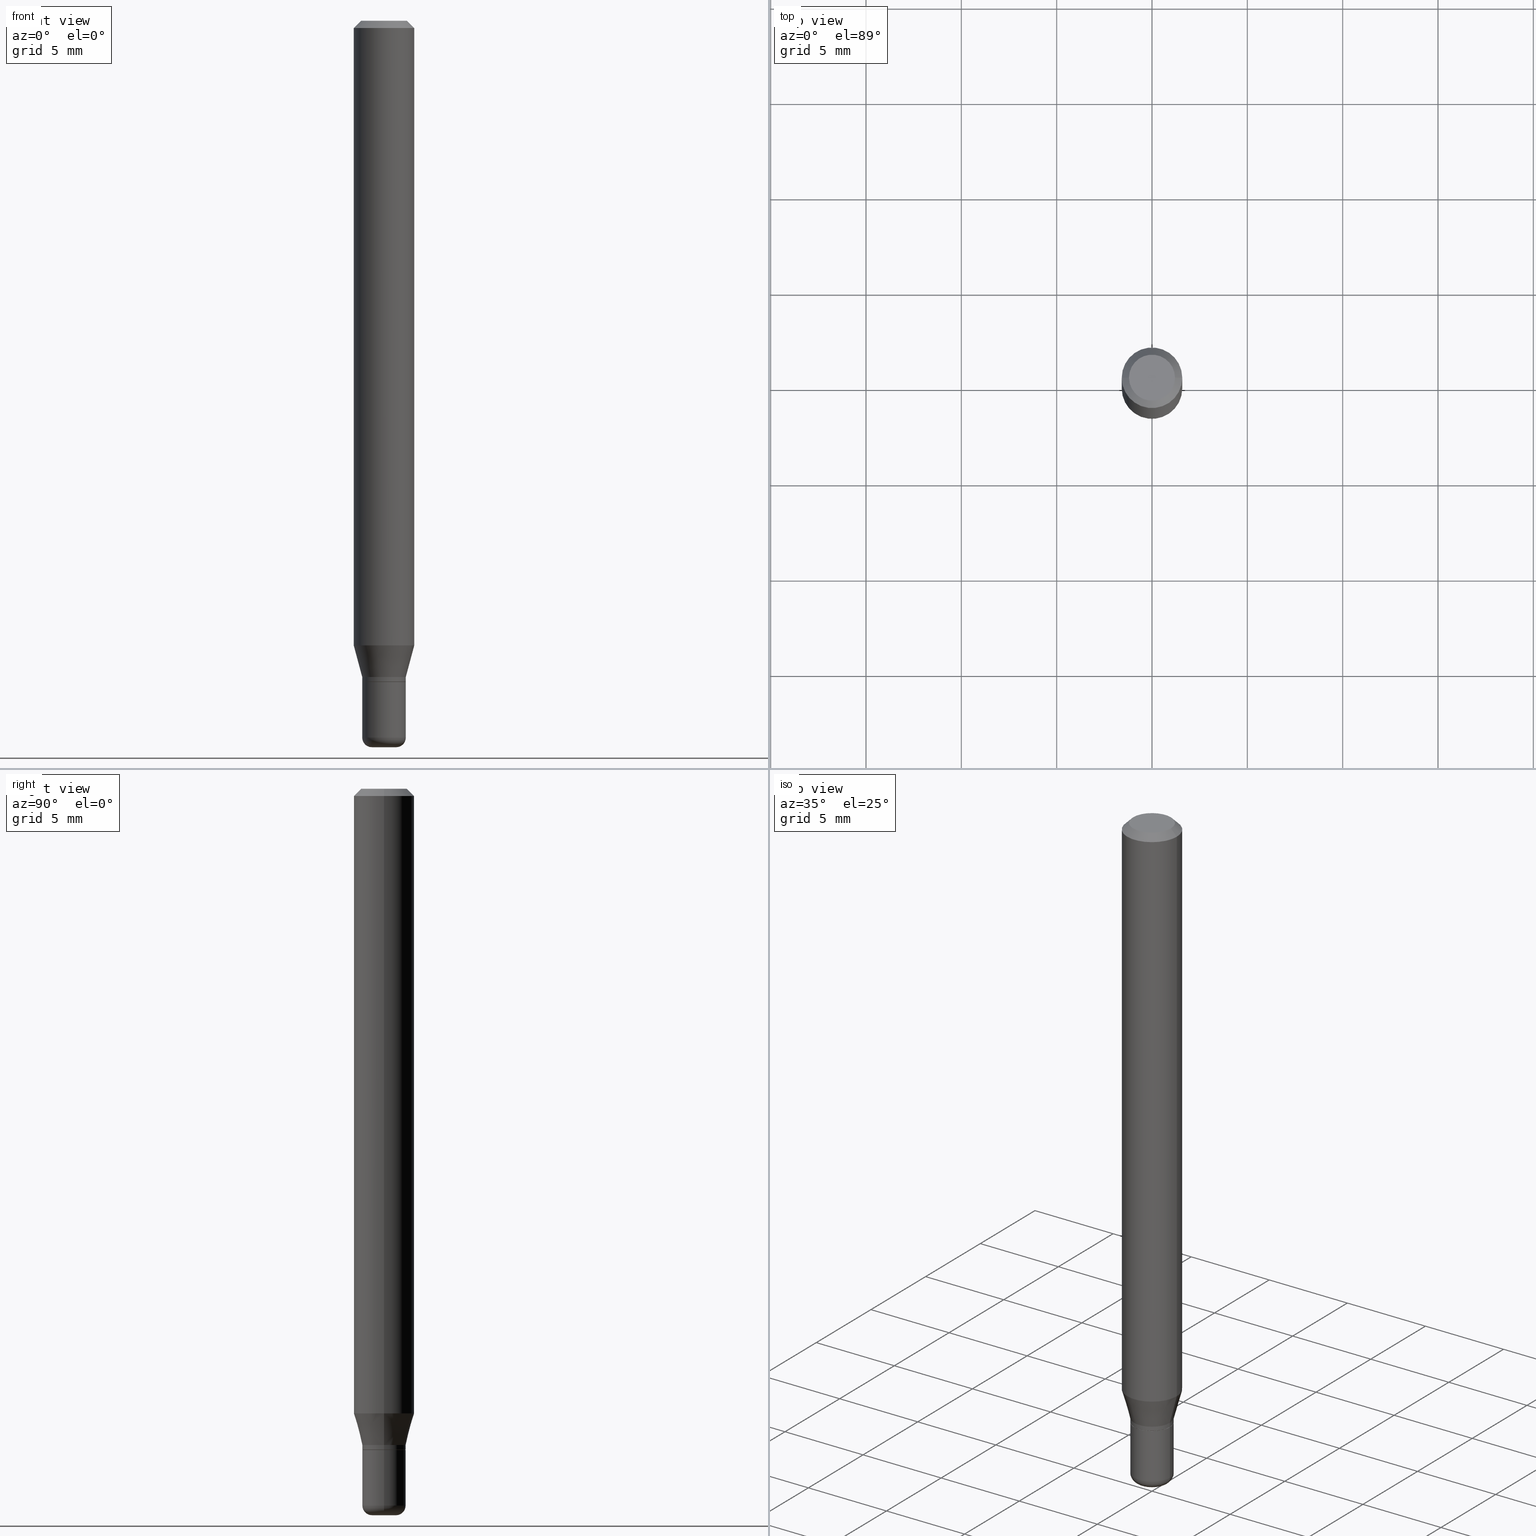
[diagram: canonical four-view strip — front | top / right | iso, engineering-drawing reading convention]
A machine part, canonical four-view strip (front | top / right | iso — engineering-drawing reading convention). The complete STEP part file that produces these views, byte-faithful:
ISO-10303-21;
HEADER;
FILE_DESCRIPTION (( 'STEP AP203' ),
    '1' );
FILE_NAME ('09206.STEP',
    '2024-02-29T23:23:54',
    ( '' ),
    ( '' ),
    'SwSTEP 2.0',
    'SolidWorks 2023',
    '' );
FILE_SCHEMA (( 'CONFIG_CONTROL_DESIGN' ));
ENDSEC;

DATA;
#1 = DIRECTION ( 'NONE',  ( 1.000000000000000000, -6.982962677686263555E-15, 0.000000000000000000 ) ) ;
#2 = ORIENTED_EDGE ( 'NONE', *, *, #406, .T. ) ;
#3 = ORIENTED_EDGE ( 'NONE', *, *, #422, .T. ) ;
#4 = ADVANCED_FACE ( 'NONE', ( #18 ), #98, .T. ) ;
#5 = DIRECTION ( 'NONE',  ( -1.000000000000000000, 6.982962677686266711E-15, 0.000000000000000000 ) ) ;
#6 = TOROIDAL_SURFACE ( 'NONE', #299, 0.02499999999999999792, 0.02000000000000003164 ) ;
#7 = FACE_OUTER_BOUND ( 'NONE', #474, .T. ) ;
#8 = CC_DESIGN_PERSON_AND_ORGANIZATION_ASSIGNMENT ( #154, #161, ( #114 ) ) ;
#9 = DIRECTION ( 'NONE',  ( -2.445468806185136877E-29, 3.491481338843145188E-15, 1.000000000000000000 ) ) ;
#10 = CARTESIAN_POINT ( 'NONE',  ( 0.02500000000000000139, -5.411796075206874844E-15, -1.500000000000000222 ) ) ;
#11 = CIRCLE ( 'NONE', #264, 0.06250000000000000000 ) ;
#12 = CONICAL_SURFACE ( 'NONE', #185, 0.04450000000000001177, 0.7853981633972775267 ) ;
#13 = ORIENTED_EDGE ( 'NONE', *, *, #164, .T. ) ;
#14 =( NAMED_UNIT ( * ) PLANE_ANGLE_UNIT ( ) SI_UNIT ( $, .RADIAN. ) );
#15 = CARTESIAN_POINT ( 'NONE',  ( -0.02499999999999999792, -4.989756697547830463E-15, -1.479999999999999982 ) ) ;
#16 = ORIENTED_EDGE ( 'NONE', *, *, #190, .F. ) ;
#17 = APPLICATION_PROTOCOL_DEFINITION ( 'international standard', 'config_control_design', 1994, #435 ) ;
#18 = FACE_OUTER_BOUND ( 'NONE', #105, .T. ) ;
#19 = LENGTH_MEASURE_WITH_UNIT ( LENGTH_MEASURE( 0.02539999999999999897 ), #345 );
#20 = EDGE_CURVE ( 'NONE', #313, #191, #461, .T. ) ;
#21 = LINE ( 'NONE', #153, #329 ) ;
#22 = ORIENTED_EDGE ( 'NONE', *, *, #339, .F. ) ;
#23 = AXIS2_PLACEMENT_3D ( 'NONE', #468, #470, #178 ) ;
#24 =( GEOMETRIC_REPRESENTATION_CONTEXT ( 3 ) GLOBAL_UNCERTAINTY_ASSIGNED_CONTEXT ( ( #290 ) ) GLOBAL_UNIT_ASSIGNED_CONTEXT ( ( #260, #14, #252 ) ) REPRESENTATION_CONTEXT ( 'NONE', 'WORKASPACE' ) );
#25 = DATE_AND_TIME ( #67, #54 ) ;
#26 = ORIENTED_EDGE ( 'NONE', *, *, #30, .T. ) ;
#27 = EDGE_CURVE ( 'NONE', #385, #191, #124, .T. ) ;
#28 = DIRECTION ( 'NONE',  ( 1.000000000000000000, -6.982962677686276177E-15, 0.000000000000000000 ) ) ;
#29 = ORIENTED_EDGE ( 'NONE', *, *, #82, .T. ) ;
#30 = EDGE_CURVE ( 'NONE', #83, #93, #43, .T. ) ;
#31 = SHAPE_DEFINITION_REPRESENTATION ( #499, #41 ) ;
#32 = FACE_OUTER_BOUND ( 'NONE', #46, .T. ) ;
#33 = AXIS2_PLACEMENT_3D ( 'NONE', #239, #84, #272 ) ;
#34 = SECURITY_CLASSIFICATION_LEVEL ( 'unclassified' ) ;
#35 = DIRECTION ( 'NONE',  ( -2.445468806185136597E-29, 3.491481338843145583E-15, 1.000000000000000000 ) ) ;
#36 = DATE_TIME_ROLE ( 'classification_date' ) ;
#37 = CARTESIAN_POINT ( 'NONE',  ( 3.338064920442711836E-29, -4.765872027520893280E-15, -1.364999999999999991 ) ) ;
#38 = ORIENTED_EDGE ( 'NONE', *, *, #27, .T. ) ;
#39 = DIRECTION ( 'NONE',  ( -2.445468806185136597E-29, 3.491481338843145583E-15, 1.000000000000000000 ) ) ;
#40 = EDGE_CURVE ( 'NONE', #58, #313, #69, .T. ) ;
#41 = ADVANCED_BREP_SHAPE_REPRESENTATION ( '09206', ( #128, #471, #431 ), #24 ) ;
#42 = CLOSED_SHELL ( 'NONE', ( #437, #428, #355, #265, #132, #455, #445, #442, #75, #409, #4, #322 ) ) ;
#43 = CIRCLE ( 'NONE', #195, 0.04500000000000003303 ) ;
#44 = FACE_OUTER_BOUND ( 'NONE', #506, .T. ) ;
#45 = VERTEX_POINT ( 'NONE', #304 ) ;
#46 = EDGE_LOOP ( 'NONE', ( #138, #241, #274, #513 ) ) ;
#47 = PLANE ( 'NONE',  #308 ) ;
#48 = ORIENTED_EDGE ( 'NONE', *, *, #205, .T. ) ;
#49 = CYLINDRICAL_SURFACE ( 'NONE', #143, 0.04500000000000002609 ) ;
#50 = ORIENTED_EDGE ( 'NONE', *, *, #512, .T. ) ;
#51 = CARTESIAN_POINT ( 'NONE',  ( 0.000000000000000000, 0.000000000000000000, 0.000000000000000000 ) ) ;
#52 = AXIS2_PLACEMENT_3D ( 'NONE', #220, #257, #73 ) ;
#53 = AXIS2_PLACEMENT_3D ( 'NONE', #289, #281, #56 ) ;
#54 = LOCAL_TIME ( 18, 23, 54.00000000000000000, #298 ) ;
#55 = DIRECTION ( 'NONE',  ( 0.2588190451025206840, 1.565188264969626504E-15, 0.9659258262890682012 ) ) ;
#56 = DIRECTION ( 'NONE',  ( 1.000000000000000000, -6.982962677686266711E-15, 0.000000000000000000 ) ) ;
#57 = ORIENTED_EDGE ( 'NONE', *, *, #230, .F. ) ;
#58 = VERTEX_POINT ( 'NONE', #99 ) ;
#59 = CARTESIAN_POINT ( 'NONE',  ( 3.313610232380860851E-29, -4.730957214132463209E-15, -1.355000000000000204 ) ) ;
#60 = DIRECTION ( 'NONE',  ( 1.000000000000000000, -6.982962677686266711E-15, 4.852736867747365086E-29 ) ) ;
#61 = VECTOR ( 'NONE', #204, 39.37007874015748143 ) ;
#62 = AXIS2_PLACEMENT_3D ( 'NONE', #110, #495, #375 ) ;
#63 = ORIENTED_EDGE ( 'NONE', *, *, #106, .T. ) ;
#64 = DIRECTION ( 'NONE',  ( 7.105427357601001859E-15, 1.000000000000000000, -3.491481338843145583E-15 ) ) ;
#65 = PRODUCT_DEFINITION ( 'UNKNOWN', '', #114, #465 ) ;
#66 = FACE_OUTER_BOUND ( 'NONE', #70, .T. ) ;
#67 = CALENDAR_DATE ( 2024, 29, 2 ) ;
#68 = DIRECTION ( 'NONE',  ( 2.438088387897960049E-29, -3.491481338843145188E-15, -1.000000000000000000 ) ) ;
#69 = CIRCLE ( 'NONE', #135, 0.04750000000000000749 ) ;
#70 = EDGE_LOOP ( 'NONE', ( #189, #13 ) ) ;
#71 = CC_DESIGN_SECURITY_CLASSIFICATION ( #492, ( #114 ) ) ;
#72 = APPROVAL_ROLE ( '' ) ;
#73 = DIRECTION ( 'NONE',  ( 1.000000000000000000, -6.982962677686276177E-15, 0.000000000000000000 ) ) ;
#74 = CARTESIAN_POINT ( 'NONE',  ( -0.04500000000000003303, -4.411212983040417053E-15, -1.355000000000000204 ) ) ;
#75 = ADVANCED_FACE ( 'NONE', ( #232 ), #224, .F. ) ;
#76 = CARTESIAN_POINT ( 'NONE',  ( 0.06250000000000000000, -4.364351673553916694E-16, 3.047610484872459871E-30 ) ) ;
#77 = CIRCLE ( 'NONE', #33, 0.06250000000000000000 ) ;
#78 = CONICAL_SURFACE ( 'NONE', #389, 0.06250000000000000000, 0.7853981633974488341 ) ;
#79 = CARTESIAN_POINT ( 'NONE',  ( 0.000000000000000000, 0.000000000000000000, 0.000000000000000000 ) ) ;
#80 = ORIENTED_EDGE ( 'NONE', *, *, #348, .T. ) ;
#81 = CARTESIAN_POINT ( 'NONE',  ( 0.000000000000000000, 0.000000000000000000, 0.000000000000000000 ) ) ;
#82 = EDGE_CURVE ( 'NONE', #305, #321, #236, .T. ) ;
#83 = VERTEX_POINT ( 'NONE', #261 ) ;
#84 = DIRECTION ( 'NONE',  ( -2.445468806185136597E-29, 3.491481338843145583E-15, 1.000000000000000000 ) ) ;
#85 = ORIENTED_EDGE ( 'NONE', *, *, #20, .F. ) ;
#86 = ORIENTED_EDGE ( 'NONE', *, *, #330, .F. ) ;
#87 = VECTOR ( 'NONE', #9, 39.37007874015748143 ) ;
#88 = CARTESIAN_POINT ( 'NONE',  ( 3.668203209277632395E-31, -5.237222008264614861E-17, -0.01499999999999970281 ) ) ;
#89 = FACE_OUTER_BOUND ( 'NONE', #446, .T. ) ;
#90 = DIRECTION ( 'NONE',  ( -1.000000000000000000, 6.982962677686266711E-15, 0.000000000000000000 ) ) ;
#91 = CARTESIAN_POINT ( 'NONE',  ( 3.668203209277704895E-29, -5.237222008264718177E-15, -1.500000000000000222 ) ) ;
#92 = VECTOR ( 'NONE', #316, 39.37007874015748143 ) ;
#93 = VERTEX_POINT ( 'NONE', #193 ) ;
#94 = EDGE_CURVE ( 'NONE', #321, #462, #249, .T. ) ;
#95 = DIRECTION ( 'NONE',  ( -2.445468806185136597E-29, 3.491481338843145583E-15, 1.000000000000000000 ) ) ;
#96 = EDGE_CURVE ( 'NONE', #321, #417, #188, .T. ) ;
#97 = DIRECTION ( 'NONE',  ( 1.000000000000000000, 0.000000000000000000, 0.000000000000000000 ) ) ;
#98 = CONICAL_SURFACE ( 'NONE', #52, 0.04450000000000001177, 0.7853981633972775267 ) ;
#99 = CARTESIAN_POINT ( 'NONE',  ( 0.04750000000000000749, -4.035134999187568762E-16, 2.731847993664288856E-16 ) ) ;
#100 = VECTOR ( 'NONE', #148, 39.37007874015748143 ) ;
#101 = AXIS2_PLACEMENT_3D ( 'NONE', #463, #107, #144 ) ;
#102 = ADVANCED_FACE ( 'NONE', ( #66 ), #295, .F. ) ;
#103 = ORIENTED_EDGE ( 'NONE', *, *, #190, .T. ) ;
#104 = DIRECTION ( 'NONE',  ( 1.000000000000000000, -6.982962677686263555E-15, 0.000000000000000000 ) ) ;
#105 = EDGE_LOOP ( 'NONE', ( #16, #440, #286, #240 ) ) ;
#106 = EDGE_CURVE ( 'NONE', #305, #401, #371, .T. ) ;
#107 = DIRECTION ( 'NONE',  ( -2.445468806185136597E-29, 3.491481338843145583E-15, 1.000000000000000000 ) ) ;
#108 = VERTEX_POINT ( 'NONE', #504 ) ;
#109 = EDGE_LOOP ( 'NONE', ( #317, #516, #374, #210 ) ) ;
#110 = CARTESIAN_POINT ( 'NONE',  ( 3.313610232380860851E-29, -4.730957214132463209E-15, -1.355000000000000204 ) ) ;
#111 = ORIENTED_EDGE ( 'NONE', *, *, #361, .F. ) ;
#112 = VECTOR ( 'NONE', #123, 39.37007874015748854 ) ;
#113 = ORIENTED_EDGE ( 'NONE', *, *, #348, .F. ) ;
#114 = PRODUCT_DEFINITION_FORMATION_WITH_SPECIFIED_SOURCE ( 'ANY', '', #425, .NOT_KNOWN. ) ;
#115 = PERSON_AND_ORGANIZATION ( #476, #245 ) ;
#116 = EDGE_CURVE ( 'NONE', #108, #93, #346, .T. ) ;
#117 = VERTEX_POINT ( 'NONE', #457 ) ;
#118 = DIRECTION ( 'NONE',  ( -2.445468806185136597E-29, 3.491481338843145583E-15, 1.000000000000000000 ) ) ;
#119 = EDGE_CURVE ( 'NONE', #181, #83, #21, .T. ) ;
#120 = PERSON_AND_ORGANIZATION_ROLE ( 'creator' ) ;
#121 = CARTESIAN_POINT ( 'NONE',  ( 0.06250000000000000000, -4.811533449433669144E-16, -0.01499999999999970281 ) ) ;
#122 = PERSON_AND_ORGANIZATION_ROLE ( 'classification_officer' ) ;
#123 = DIRECTION ( 'NONE',  ( -0.2588190451025206840, 5.211531920934545520E-15, 0.9659258262890682012 ) ) ;
#124 = CIRCLE ( 'NONE', #403, 0.06250000000000000000 ) ;
#125 = CONICAL_SURFACE ( 'NONE', #201, 0.04500000000000003303, 0.2617993877991494078 ) ;
#126 = COORDINATED_UNIVERSAL_TIME_OFFSET ( 5, 0, .BEHIND. ) ;
#127 = CARTESIAN_POINT ( 'NONE',  ( -0.02500000000000000139, -4.953617237360251242E-15, -1.500000000000000222 ) ) ;
#128 = MANIFOLD_SOLID_BREP ( 'Body-Move/Copy2[1]', #211 ) ;
#129 = PERSON_AND_ORGANIZATION ( #476, #245 ) ;
#130 = LINE ( 'NONE', #76, #92 ) ;
#131 = ORIENTED_EDGE ( 'NONE', *, *, #94, .T. ) ;
#132 = ADVANCED_FACE ( 'NONE', ( #183 ), #125, .T. ) ;
#133 = DIRECTION ( 'NONE',  ( -2.445468806185136597E-29, 3.491481338843145583E-15, 1.000000000000000000 ) ) ;
#134 = EDGE_LOOP ( 'NONE', ( #26, #48, #199, #487 ) ) ;
#135 = AXIS2_PLACEMENT_3D ( 'NONE', #342, #373, #60 ) ;
#136 = LOCAL_TIME ( 18, 23, 54.00000000000000000, #233 ) ;
#137 = DIRECTION ( 'NONE',  ( -2.445468806185136597E-29, 3.491481338843145583E-15, 1.000000000000000000 ) ) ;
#138 = ORIENTED_EDGE ( 'NONE', *, *, #483, .T. ) ;
#139 = DIRECTION ( 'NONE',  ( 1.000000000000000000, -6.982962677686266711E-15, 4.876176775795935793E-29 ) ) ;
#140 = DIRECTION ( 'NONE',  ( -2.445468806185136597E-29, 3.491481338843145583E-15, 1.000000000000000000 ) ) ;
#141 = CARTESIAN_POINT ( 'NONE',  ( 3.153894490303225812E-29, -4.502925463503242152E-15, -1.289689110867545008 ) ) ;
#142 = AXIS2_PLACEMENT_3D ( 'NONE', #408, #140, #1 ) ;
#143 = AXIS2_PLACEMENT_3D ( 'NONE', #454, #209, #139 ) ;
#144 = DIRECTION ( 'NONE',  ( 1.000000000000000000, -6.982962677686262766E-15, 0.000000000000000000 ) ) ;
#145 = APPROVAL ( #315, 'UNSPECIFIED' ) ;
#146 = DIRECTION ( 'NONE',  ( 1.000000000000000000, -6.982962677686263555E-15, 0.000000000000000000 ) ) ;
#147 = APPROVAL_DATE_TIME ( #418, #390 ) ;
#148 = DIRECTION ( 'NONE',  ( -2.445468806185136877E-29, 3.491481338843145188E-15, 1.000000000000000000 ) ) ;
#149 = CIRCLE ( 'NONE', #429, 0.02500000000000000139 ) ;
#150 = APPROVAL_STATUS ( 'not_yet_approved' ) ;
#151 = CARTESIAN_POINT ( 'NONE',  ( 3.313610232380860851E-29, -4.730957214132463209E-15, -1.355000000000000204 ) ) ;
#152 = DATE_TIME_ROLE ( 'creation_date' ) ;
#153 = CARTESIAN_POINT ( 'NONE',  ( 0.04500000000000002609, -3.142333204958821795E-16, 2.194279549108172368E-30 ) ) ;
#154 = PERSON_AND_ORGANIZATION ( #476, #245 ) ;
#155 = DIRECTION ( 'NONE',  ( 1.000000000000000000, -6.982962677686266711E-15, 0.000000000000000000 ) ) ;
#156 = AXIS2_PLACEMENT_3D ( 'NONE', #79, #320, #386 ) ;
#157 = ORIENTED_EDGE ( 'NONE', *, *, #330, .T. ) ;
#158 = CARTESIAN_POINT ( 'NONE',  ( 0.000000000000000000, 0.000000000000000000, 0.000000000000000000 ) ) ;
#159 = CARTESIAN_POINT ( 'NONE',  ( 3.619293833154002365E-29, -5.167392381487854879E-15, -1.479999999999999982 ) ) ;
#160 = CC_DESIGN_PERSON_AND_ORGANIZATION_ASSIGNMENT ( #416, #497, ( #425 ) ) ;
#161 = PERSON_AND_ORGANIZATION_ROLE ( 'design_supplier' ) ;
#162 = CYLINDRICAL_SURFACE ( 'NONE', #175, 0.04500000000000001221 ) ;
#163 = DIRECTION ( 'NONE',  ( 1.000000000000000000, -6.982962677686269077E-15, 0.000000000000000000 ) ) ;
#164 = EDGE_CURVE ( 'NONE', #417, #393, #227, .T. ) ;
#165 = DIRECTION ( 'NONE',  ( 1.000000000000000000, -6.982962677686267499E-15, 4.876176775795935793E-29 ) ) ;
#166 = EDGE_LOOP ( 'NONE', ( #338, #63, #157, #518 ) ) ;
#167 = CARTESIAN_POINT ( 'NONE',  ( 0.06250000000000000000, -4.888073874380378612E-16, -0.01499999999999970281 ) ) ;
#168 = AXIS2_PLACEMENT_3D ( 'NONE', #158, #319, #194 ) ;
#169 = DIRECTION ( 'NONE',  ( -2.438088387897960049E-29, 3.491481338843145188E-15, 1.000000000000000000 ) ) ;
#170 = FACE_OUTER_BOUND ( 'NONE', #311, .T. ) ;
#171 = ADVANCED_FACE ( 'NONE', ( #350 ), #337, .T. ) ;
#172 = CARTESIAN_POINT ( 'NONE',  ( -0.06250000000000000000, 4.440892098500626162E-16, -3.074334431409316114E-30 ) ) ;
#173 = CC_DESIGN_DATE_AND_TIME_ASSIGNMENT ( #469, #36, ( #492 ) ) ;
#174 = CARTESIAN_POINT ( 'NONE',  ( -0.04499999999999999833, -4.646887973412328712E-15, -1.364999999999999991 ) ) ;
#175 = AXIS2_PLACEMENT_3D ( 'NONE', #81, #133, #165 ) ;
#176 = EDGE_CURVE ( 'NONE', #341, #385, #130, .T. ) ;
#177 = DIRECTION ( 'NONE',  ( 1.000000000000000000, -6.982962677686266711E-15, 4.876176775795935793E-29 ) ) ;
#178 = DIRECTION ( 'NONE',  ( -1.000000000000000000, 6.982962677686265922E-15, -4.876176775795935793E-29 ) ) ;
#179 = DIRECTION ( 'NONE',  ( -2.445468806185136597E-29, 3.491481338843145583E-15, 1.000000000000000000 ) ) ;
#180 = DIRECTION ( 'NONE',  ( -2.445468806185136597E-29, 3.491481338843145583E-15, 1.000000000000000000 ) ) ;
#181 = VERTEX_POINT ( 'NONE', #517 ) ;
#182 = ORIENTED_EDGE ( 'NONE', *, *, #335, .T. ) ;
#183 = FACE_OUTER_BOUND ( 'NONE', #134, .T. ) ;
#184 = CIRCLE ( 'NONE', #491, 0.04499999999999999833 ) ;
#185 = AXIS2_PLACEMENT_3D ( 'NONE', #326, #488, #490 ) ;
#186 = CARTESIAN_POINT ( 'NONE',  ( 0.000000000000000000, 0.000000000000000000, 0.000000000000000000 ) ) ;
#187 = ORIENTED_EDGE ( 'NONE', *, *, #369, .F. ) ;
#188 = LINE ( 'NONE', #507, #486 ) ;
#189 = ORIENTED_EDGE ( 'NONE', *, *, #384, .T. ) ;
#190 = EDGE_CURVE ( 'NONE', #292, #108, #514, .T. ) ;
#191 = VERTEX_POINT ( 'NONE', #360 ) ;
#192 = CARTESIAN_POINT ( 'NONE',  ( 3.338064920442711836E-29, -4.765872027520893280E-15, -1.364999999999999991 ) ) ;
#193 = CARTESIAN_POINT ( 'NONE',  ( -0.04500000000000003303, -4.235024618346798294E-15, -1.355000000000000204 ) ) ;
#194 = DIRECTION ( 'NONE',  ( 1.000000000000000000, -6.982962677686266711E-15, 4.876176775795935793E-29 ) ) ;
#195 = AXIS2_PLACEMENT_3D ( 'NONE', #151, #118, #146 ) ;
#196 = ADVANCED_FACE ( 'NONE', ( #198 ), #6, .T. ) ;
#197 = CARTESIAN_POINT ( 'NONE',  ( 3.582686580359766038E-29, -5.359686688179453325E-15, -1.500000000000000222 ) ) ;
#198 = FACE_OUTER_BOUND ( 'NONE', #231, .T. ) ;
#199 = ORIENTED_EDGE ( 'NONE', *, *, #483, .F. ) ;
#200 = ORIENTED_EDGE ( 'NONE', *, *, #164, .F. ) ;
#201 = AXIS2_PLACEMENT_3D ( 'NONE', #502, #39, #234 ) ;
#202 = LOCAL_TIME ( 18, 23, 54.00000000000000000, #472 ) ;
#203 = EDGE_LOOP ( 'NONE', ( #268, #131, #182, #200 ) ) ;
#204 = DIRECTION ( 'NONE',  ( -0.7071067811864267805, 7.493145998869918709E-15, 0.7071067811866682540 ) ) ;
#205 = EDGE_CURVE ( 'NONE', #93, #45, #424, .T. ) ;
#206 = ORIENTED_EDGE ( 'NONE', *, *, #467, .F. ) ;
#207 = CARTESIAN_POINT ( 'NONE',  ( -6.680649051745406845E-45, 9.538196290434862081E-31, 2.731847993664263218E-16 ) ) ;
#208 = APPLICATION_CONTEXT ( 'configuration controlled 3d designs of mechanical parts and assemblies' ) ;
#209 = DIRECTION ( 'NONE',  ( -2.445468806185136597E-29, 3.491481338843145583E-15, 1.000000000000000000 ) ) ;
#210 = ORIENTED_EDGE ( 'NONE', *, *, #406, .F. ) ;
#211 = CLOSED_SHELL ( 'NONE', ( #196, #344, #102, #216, #171, #294 ) ) ;
#212 = CC_DESIGN_APPROVAL ( #390, ( #65 ) ) ;
#213 = CARTESIAN_POINT ( 'NONE',  ( 0.04500000000000003303, -5.045190534628344896E-15, -1.355000000000000204 ) ) ;
#214 = DIRECTION ( 'NONE',  ( -2.445468806185136597E-29, 3.491481338843145583E-15, 1.000000000000000000 ) ) ;
#215 = DIRECTION ( 'NONE',  ( 0.7071067811864267805, -2.468850131080992517E-15, 0.7071067811866682540 ) ) ;
#216 = ADVANCED_FACE ( 'NONE', ( #475 ), #162, .T. ) ;
#217 = DIRECTION ( 'NONE',  ( -2.445468806185136597E-29, 3.491481338843145583E-15, 1.000000000000000000 ) ) ;
#218 = VECTOR ( 'NONE', #285, 39.37007874015748143 ) ;
#219 = CIRCLE ( 'NONE', #397, 0.04500000000000001221 ) ;
#220 = CARTESIAN_POINT ( 'NONE',  ( 3.338064920442711836E-29, -4.765872027520893280E-15, -1.364999999999999991 ) ) ;
#221 = COORDINATED_UNIVERSAL_TIME_OFFSET ( 5, 0, .BEHIND. ) ;
#222 = ORIENTED_EDGE ( 'NONE', *, *, #422, .F. ) ;
#223 = CALENDAR_DATE ( 2024, 29, 2 ) ;
#224 = PLANE ( 'NONE',  #23 ) ;
#225 = APPROVAL_ROLE ( '' ) ;
#226 = CC_DESIGN_PERSON_AND_ORGANIZATION_ASSIGNMENT ( #129, #120, ( #114 ) ) ;
#227 = CIRCLE ( 'NONE', #410, 0.04499999999999999833 ) ;
#228 = DIRECTION ( 'NONE',  ( -2.445468806185136597E-29, 3.491481338843145583E-15, 1.000000000000000000 ) ) ;
#229 = AXIS2_PLACEMENT_3D ( 'NONE', #197, #280, #354 ) ;
#230 = EDGE_CURVE ( 'NONE', #292, #117, #387, .T. ) ;
#231 = EDGE_LOOP ( 'NONE', ( #297, #29, #113, #86 ) ) ;
#232 = FACE_OUTER_BOUND ( 'NONE', #426, .T. ) ;
#233 = COORDINATED_UNIVERSAL_TIME_OFFSET ( 5, 0, .BEHIND. ) ;
#234 = DIRECTION ( 'NONE',  ( 1.000000000000000000, -6.982962677686263555E-15, 0.000000000000000000 ) ) ;
#235 = CYLINDRICAL_SURFACE ( 'NONE', #156, 0.04500000000000002609 ) ;
#236 = CIRCLE ( 'NONE', #452, 0.02000000000000003511 ) ;
#237 = CALENDAR_DATE ( 2024, 29, 2 ) ;
#238 = CARTESIAN_POINT ( 'NONE',  ( 0.02499999999999999792, -5.341966448430011546E-15, -1.479999999999999982 ) ) ;
#239 = CARTESIAN_POINT ( 'NONE',  ( 3.668203209277632395E-31, -5.237222008264614861E-17, -0.01499999999999970281 ) ) ;
#240 = ORIENTED_EDGE ( 'NONE', *, *, #512, .F. ) ;
#241 = ORIENTED_EDGE ( 'NONE', *, *, #415, .T. ) ;
#242 = CARTESIAN_POINT ( 'NONE',  ( 0.04500000000000001221, -3.142333204958821302E-16, 2.194279549108171667E-30 ) ) ;
#243 = EDGE_CURVE ( 'NONE', #58, #385, #480, .T. ) ;
#244 = CIRCLE ( 'NONE', #53, 0.04500000000000001221 ) ;
#245 = ORGANIZATION ( 'UNSPECIFIED', 'UNSPECIFIED', '' ) ;
#246 = DIRECTION ( 'NONE',  ( 1.000000000000000000, -6.982962677686262766E-15, 0.000000000000000000 ) ) ;
#247 = CARTESIAN_POINT ( 'NONE',  ( 0.04499999999999999833, -5.080105348016775756E-15, -1.364999999999999991 ) ) ;
#248 = CYLINDRICAL_SURFACE ( 'NONE', #481, 0.06250000000000000000 ) ;
#249 = CIRCLE ( 'NONE', #459, 0.04500000000000003303 ) ;
#250 = DIRECTION ( 'NONE',  ( 1.000000000000000000, -6.982962677686267499E-15, 4.876176775795935793E-29 ) ) ;
#251 = CARTESIAN_POINT ( 'NONE',  ( 0.06250000000000000000, -4.939360630858633822E-15, -1.289689110867545008 ) ) ;
#252 =( NAMED_UNIT ( * ) SI_UNIT ( $, .STERADIAN. ) SOLID_ANGLE_UNIT ( ) );
#253 = DIRECTION ( 'NONE',  ( -2.445468806185136597E-29, 3.491481338843145583E-15, 1.000000000000000000 ) ) ;
#254 = EDGE_LOOP ( 'NONE', ( #282, #222, #395, #423 ) ) ;
#255 = PRODUCT_RELATED_PRODUCT_CATEGORY ( 'detail', '', ( #425 ) ) ;
#256 = DIRECTION ( 'NONE',  ( 0.000000000000000000, 0.000000000000000000, 1.000000000000000000 ) ) ;
#257 = DIRECTION ( 'NONE',  ( -2.445468806185136597E-29, 3.491481338843145583E-15, 1.000000000000000000 ) ) ;
#258 = ORIENTED_EDGE ( 'NONE', *, *, #243, .T. ) ;
#259 = APPROVAL ( #466, 'UNSPECIFIED' ) ;
#260 =( CONVERSION_BASED_UNIT ( 'INCH', #19 ) LENGTH_UNIT ( ) NAMED_UNIT ( #447 ) );
#261 = CARTESIAN_POINT ( 'NONE',  ( 0.04500000000000003303, -5.045190534628344896E-15, -1.355000000000000204 ) ) ;
#262 = CC_DESIGN_PERSON_AND_ORGANIZATION_ASSIGNMENT ( #279, #122, ( #492 ) ) ;
#263 = FACE_OUTER_BOUND ( 'NONE', #109, .T. ) ;
#264 = AXIS2_PLACEMENT_3D ( 'NONE', #141, #448, #246 ) ;
#265 = ADVANCED_FACE ( 'NONE', ( #32 ), #356, .T. ) ;
#266 = DIRECTION ( 'NONE',  ( -1.000000000000000000, 6.982962677686265922E-15, -4.876176775795935793E-29 ) ) ;
#267 = CC_DESIGN_APPROVAL ( #145, ( #492 ) ) ;
#268 = ORIENTED_EDGE ( 'NONE', *, *, #96, .F. ) ;
#269 = EDGE_LOOP ( 'NONE', ( #22, #414 ) ) ;
#270 = CARTESIAN_POINT ( 'NONE',  ( -0.06250000000000000000, 3.840629472727455270E-16, -0.01499999999999970281 ) ) ;
#271 = ORIENTED_EDGE ( 'NONE', *, *, #30, .F. ) ;
#272 = DIRECTION ( 'NONE',  ( 1.000000000000000000, -6.982962677686266711E-15, 0.000000000000000000 ) ) ;
#273 = PLANE ( 'NONE',  #229 ) ;
#274 = ORIENTED_EDGE ( 'NONE', *, *, #27, .F. ) ;
#275 = AXIS2_PLACEMENT_3D ( 'NONE', #88, #331, #5 ) ;
#276 = APPROVAL_PERSON_ORGANIZATION ( #115, #145, #478 ) ;
#277 = CALENDAR_DATE ( 2024, 29, 2 ) ;
#278 = DIRECTION ( 'NONE',  ( -6.982962677686266711E-15, -1.000000000000000000, 3.491481338843145583E-15 ) ) ;
#279 = PERSON_AND_ORGANIZATION ( #476, #245 ) ;
#280 = DIRECTION ( 'NONE',  ( -2.438088387897960049E-29, 3.491481338843145188E-15, 1.000000000000000000 ) ) ;
#281 = DIRECTION ( 'NONE',  ( -2.445468806185136597E-29, 3.491481338843145583E-15, 1.000000000000000000 ) ) ;
#282 = ORIENTED_EDGE ( 'NONE', *, *, #243, .F. ) ;
#283 = CIRCLE ( 'NONE', #349, 0.04750000000000000749 ) ;
#284 = CC_DESIGN_APPROVAL ( #259, ( #114 ) ) ;
#285 = DIRECTION ( 'NONE',  ( -2.445468806185136877E-29, 3.491481338843145188E-15, 1.000000000000000000 ) ) ;
#286 = ORIENTED_EDGE ( 'NONE', *, *, #361, .T. ) ;
#287 = ORIENTED_EDGE ( 'NONE', *, *, #369, .T. ) ;
#288 = CARTESIAN_POINT ( 'NONE',  ( 3.668203209277632395E-31, -5.237222008264614861E-17, -0.01499999999999970281 ) ) ;
#289 = CARTESIAN_POINT ( 'NONE',  ( 3.336842186039618474E-29, -4.764126286851472566E-15, -1.364499999999999824 ) ) ;
#290 = UNCERTAINTY_MEASURE_WITH_UNIT (LENGTH_MEASURE( 1.000000000000000082E-05 ), #260, 'distance_accuracy_value', 'NONE');
#291 = AXIS2_PLACEMENT_3D ( 'NONE', #238, #278, #310 ) ;
#292 = VERTEX_POINT ( 'NONE', #511 ) ;
#293 = CARTESIAN_POINT ( 'NONE',  ( 0.04450000000000001177, -5.076613866677932749E-15, -1.364999999999999991 ) ) ;
#294 = ADVANCED_FACE ( 'NONE', ( #482 ), #273, .F. ) ;
#295 = PLANE ( 'NONE',  #508 ) ;
#296 = ORIENTED_EDGE ( 'NONE', *, *, #119, .T. ) ;
#297 = ORIENTED_EDGE ( 'NONE', *, *, #339, .T. ) ;
#298 = COORDINATED_UNIVERSAL_TIME_OFFSET ( 5, 0, .BEHIND. ) ;
#299 = AXIS2_PLACEMENT_3D ( 'NONE', #159, #515, #388 ) ;
#300 = ORIENTED_EDGE ( 'NONE', *, *, #116, .F. ) ;
#301 = CC_DESIGN_PERSON_AND_ORGANIZATION_ASSIGNMENT ( #379, #377, ( #65 ) ) ;
#302 = CARTESIAN_POINT ( 'NONE',  ( 3.619293833154002365E-29, -5.167392381487854879E-15, -1.479999999999999982 ) ) ;
#303 = PERSON_AND_ORGANIZATION ( #476, #245 ) ;
#304 = CARTESIAN_POINT ( 'NONE',  ( -0.06250000000000000000, -4.058836253653178747E-15, -1.289689110867545008 ) ) ;
#305 = VERTEX_POINT ( 'NONE', #127 ) ;
#306 = APPROVAL_DATE_TIME ( #312, #145 ) ;
#307 = VECTOR ( 'NONE', #376, 39.37007874015748143 ) ;
#308 = AXIS2_PLACEMENT_3D ( 'NONE', #494, #169, #451 ) ;
#309 = DIRECTION ( 'NONE',  ( -2.445468806185136877E-29, 3.491481338843145188E-15, 1.000000000000000000 ) ) ;
#310 = DIRECTION ( 'NONE',  ( 1.000000000000000000, -6.982962677686272233E-15, 0.000000000000000000 ) ) ;
#311 = EDGE_LOOP ( 'NONE', ( #80, #493, #484, #439 ) ) ;
#312 = DATE_AND_TIME ( #347, #460 ) ;
#313 = VERTEX_POINT ( 'NONE', #314 ) ;
#314 = CARTESIAN_POINT ( 'NONE',  ( -0.04750000000000000749, 3.578768372314221353E-16, 2.731847993664239060E-16 ) ) ;
#315 = APPROVAL_STATUS ( 'not_yet_approved' ) ;
#316 = DIRECTION ( 'NONE',  ( -2.445468806185136877E-29, 3.491481338843145188E-15, 1.000000000000000000 ) ) ;
#317 = ORIENTED_EDGE ( 'NONE', *, *, #205, .F. ) ;
#318 = EDGE_CURVE ( 'NONE', #191, #385, #77, .T. ) ;
#319 = DIRECTION ( 'NONE',  ( -2.445468806185136597E-29, 3.491481338843145583E-15, 1.000000000000000000 ) ) ;
#320 = DIRECTION ( 'NONE',  ( -2.445468806185136597E-29, 3.491481338843145583E-15, 1.000000000000000000 ) ) ;
#321 = VERTEX_POINT ( 'NONE', #430 ) ;
#322 = ADVANCED_FACE ( 'NONE', ( #44 ), #235, .T. ) ;
#323 = DIRECTION ( 'NONE',  ( 1.000000000000000000, -6.982962677686269077E-15, 0.000000000000000000 ) ) ;
#324 = VECTOR ( 'NONE', #55, 39.37007874015748854 ) ;
#325 = CIRCLE ( 'NONE', #351, 0.04450000000000001177 ) ;
#326 = CARTESIAN_POINT ( 'NONE',  ( 3.338064920442711836E-29, -4.765872027520893280E-15, -1.364999999999999991 ) ) ;
#327 = LINE ( 'NONE', #213, #324 ) ;
#328 = DIRECTION ( 'NONE',  ( 1.000000000000000000, -6.982962677686266711E-15, 4.852736867747365086E-29 ) ) ;
#329 = VECTOR ( 'NONE', #309, 39.37007874015748143 ) ;
#330 = EDGE_CURVE ( 'NONE', #401, #462, #365, .T. ) ;
#331 = DIRECTION ( 'NONE',  ( 2.445468806185136597E-29, -3.491481338843145583E-15, -1.000000000000000000 ) ) ;
#332 = EDGE_LOOP ( 'NONE', ( #432, #258, #38, #85 ) ) ;
#333 = DIRECTION ( 'NONE',  ( 1.000000000000000000, -6.982962677686263555E-15, 0.000000000000000000 ) ) ;
#334 = MECHANICAL_CONTEXT ( 'NONE', #435, 'mechanical' ) ;
#335 = EDGE_CURVE ( 'NONE', #462, #393, #433, .T. ) ;
#336 = CARTESIAN_POINT ( 'NONE',  ( 3.668203209277632395E-31, -5.237222008264614861E-17, -0.01499999999999970281 ) ) ;
#337 = TOROIDAL_SURFACE ( 'NONE', #380, 0.02499999999999999792, 0.02000000000000003164 ) ;
#338 = ORIENTED_EDGE ( 'NONE', *, *, #82, .F. ) ;
#339 = EDGE_CURVE ( 'NONE', #401, #305, #149, .T. ) ;
#340 = APPLICATION_PROTOCOL_DEFINITION ( 'international standard', 'config_control_design', 1994, #208 ) ;
#341 = VERTEX_POINT ( 'NONE', #251 ) ;
#342 = CARTESIAN_POINT ( 'NONE',  ( -6.680649051745406845E-45, 9.538196290434862081E-31, 2.731847993664263218E-16 ) ) ;
#343 = ORIENTED_EDGE ( 'NONE', *, *, #318, .F. ) ;
#344 = ADVANCED_FACE ( 'NONE', ( #170 ), #399, .T. ) ;
#345 =( LENGTH_UNIT ( ) NAMED_UNIT ( * ) SI_UNIT ( $, .METRE. ) );
#346 = LINE ( 'NONE', #498, #100 ) ;
#347 = CALENDAR_DATE ( 2024, 29, 2 ) ;
#348 = EDGE_CURVE ( 'NONE', #462, #321, #443, .T. ) ;
#349 = AXIS2_PLACEMENT_3D ( 'NONE', #207, #362, #328 ) ;
#350 = FACE_OUTER_BOUND ( 'NONE', #166, .T. ) ;
#351 = AXIS2_PLACEMENT_3D ( 'NONE', #192, #217, #28 ) ;
#352 = CARTESIAN_POINT ( 'NONE',  ( -0.04450000000000001177, -4.449680510107648811E-15, -1.364999999999999991 ) ) ;
#353 = DATE_AND_TIME ( #277, #202 ) ;
#354 = DIRECTION ( 'NONE',  ( 1.000000000000000000, -6.982962677686265922E-15, 4.876176775795935793E-29 ) ) ;
#355 = ADVANCED_FACE ( 'NONE', ( #407 ), #500, .T. ) ;
#356 = CYLINDRICAL_SURFACE ( 'NONE', #168, 0.06250000000000000000 ) ;
#357 = AXIS2_PLACEMENT_3D ( 'NONE', #51, #95, #250 ) ;
#358 = ORIENTED_EDGE ( 'NONE', *, *, #40, .T. ) ;
#359 = EDGE_CURVE ( 'NONE', #83, #341, #327, .T. ) ;
#360 = CARTESIAN_POINT ( 'NONE',  ( -0.06250000000000000000, -1.833559631942881408E-15, -0.01499999999999970281 ) ) ;
#361 = EDGE_CURVE ( 'NONE', #117, #181, #370, .T. ) ;
#362 = DIRECTION ( 'NONE',  ( -2.445468806185136597E-29, 3.491481338843145583E-15, 1.000000000000000000 ) ) ;
#363 = EDGE_LOOP ( 'NONE', ( #412, #103, #187, #111 ) ) ;
#364 = CARTESIAN_POINT ( 'NONE',  ( 3.338064920442711836E-29, -4.765872027520893280E-15, -1.364999999999999991 ) ) ;
#365 = CIRCLE ( 'NONE', #291, 0.02000000000000003511 ) ;
#366 = CIRCLE ( 'NONE', #101, 0.06250000000000000000 ) ;
#367 = FACE_OUTER_BOUND ( 'NONE', #254, .T. ) ;
#368 = LINE ( 'NONE', #172, #218 ) ;
#369 = EDGE_CURVE ( 'NONE', #181, #108, #244, .T. ) ;
#370 = LINE ( 'NONE', #293, #420 ) ;
#371 = CIRCLE ( 'NONE', #479, 0.02500000000000000139 ) ;
#372 = CARTESIAN_POINT ( 'NONE',  ( 0.04500000000000003303, -5.481625701983737354E-15, -1.479999999999999982 ) ) ;
#373 = DIRECTION ( 'NONE',  ( -2.445468806185136597E-29, 3.491481338843145583E-15, 1.000000000000000000 ) ) ;
#374 = ORIENTED_EDGE ( 'NONE', *, *, #359, .T. ) ;
#375 = DIRECTION ( 'NONE',  ( 1.000000000000000000, -6.982962677686263555E-15, 0.000000000000000000 ) ) ;
#376 = DIRECTION ( 'NONE',  ( -0.7071067811865479058, 2.468850131082261005E-15, -0.7071067811865471286 ) ) ;
#377 = PERSON_AND_ORGANIZATION_ROLE ( 'creator' ) ;
#378 = DIRECTION ( 'NONE',  ( -2.445468806185136597E-29, 3.491481338843145583E-15, 1.000000000000000000 ) ) ;
#379 = PERSON_AND_ORGANIZATION ( #476, #245 ) ;
#380 = AXIS2_PLACEMENT_3D ( 'NONE', #510, #35, #391 ) ;
#381 = CARTESIAN_POINT ( 'NONE',  ( 3.668203209277704895E-29, -5.237222008264718177E-15, -1.500000000000000222 ) ) ;
#382 = DIRECTION ( 'NONE',  ( 1.000000000000000000, -6.982962677686266711E-15, 0.000000000000000000 ) ) ;
#383 = DIRECTION ( 'NONE',  ( 1.000000000000000000, -6.982962677686254878E-15, 0.000000000000000000 ) ) ;
#384 = EDGE_CURVE ( 'NONE', #393, #417, #184, .T. ) ;
#385 = VERTEX_POINT ( 'NONE', #167 ) ;
#386 = DIRECTION ( 'NONE',  ( 1.000000000000000000, -6.982962677686266711E-15, 4.876176775795935793E-29 ) ) ;
#387 = CIRCLE ( 'NONE', #396, 0.04450000000000001177 ) ;
#388 = DIRECTION ( 'NONE',  ( 1.000000000000000000, -6.982962677686262766E-15, 4.883557194083111780E-29 ) ) ;
#389 = AXIS2_PLACEMENT_3D ( 'NONE', #288, #449, #90 ) ;
#390 = APPROVAL ( #150, 'UNSPECIFIED' ) ;
#391 = DIRECTION ( 'NONE',  ( 1.000000000000000000, -6.982962677686262766E-15, 4.883557194083111780E-29 ) ) ;
#392 = DIRECTION ( 'NONE',  ( 1.000000000000000000, -6.982962677686276177E-15, 0.000000000000000000 ) ) ;
#393 = VERTEX_POINT ( 'NONE', #247 ) ;
#394 = DIRECTION ( 'NONE',  ( -2.445468806185136597E-29, 3.491481338843145583E-15, 1.000000000000000000 ) ) ;
#395 = ORIENTED_EDGE ( 'NONE', *, *, #20, .T. ) ;
#396 = AXIS2_PLACEMENT_3D ( 'NONE', #37, #394, #392 ) ;
#397 = AXIS2_PLACEMENT_3D ( 'NONE', #456, #179, #382 ) ;
#398 = ORIENTED_EDGE ( 'NONE', *, *, #176, .T. ) ;
#399 = CYLINDRICAL_SURFACE ( 'NONE', #357, 0.04500000000000001221 ) ;
#400 = FACE_OUTER_BOUND ( 'NONE', #413, .T. ) ;
#401 = VERTEX_POINT ( 'NONE', #10 ) ;
#402 = CARTESIAN_POINT ( 'NONE',  ( 0.000000000000000000, 0.000000000000000000, 0.000000000000000000 ) ) ;
#403 = AXIS2_PLACEMENT_3D ( 'NONE', #336, #180, #155 ) ;
#404 = VECTOR ( 'NONE', #427, 39.37007874015748143 ) ;
#405 = CIRCLE ( 'NONE', #453, 0.04500000000000003303 ) ;
#406 = EDGE_CURVE ( 'NONE', #45, #341, #11, .T. ) ;
#407 = FACE_OUTER_BOUND ( 'NONE', #332, .T. ) ;
#408 = CARTESIAN_POINT ( 'NONE',  ( 3.619293833154002365E-29, -5.167392381487854879E-15, -1.479999999999999982 ) ) ;
#409 = ADVANCED_FACE ( 'NONE', ( #89 ), #47, .F. ) ;
#410 = AXIS2_PLACEMENT_3D ( 'NONE', #477, #438, #163 ) ;
#411 = PERSON_AND_ORGANIZATION ( #476, #245 ) ;
#412 = ORIENTED_EDGE ( 'NONE', *, *, #458, .T. ) ;
#413 = EDGE_LOOP ( 'NONE', ( #287, #473, #271, #505 ) ) ;
#414 = ORIENTED_EDGE ( 'NONE', *, *, #106, .F. ) ;
#415 = EDGE_CURVE ( 'NONE', #45, #191, #368, .T. ) ;
#416 = PERSON_AND_ORGANIZATION ( #476, #245 ) ;
#417 = VERTEX_POINT ( 'NONE', #174 ) ;
#418 = DATE_AND_TIME ( #223, #509 ) ;
#419 = CARTESIAN_POINT ( 'NONE',  ( 3.142333204959153116E-16, 0.04499999999999523131, -1.365000000000000435 ) ) ;
#420 = VECTOR ( 'NONE', #215, 39.37007874015748143 ) ;
#421 = APPROVAL_PERSON_ORGANIZATION ( #411, #390, #225 ) ;
#422 = EDGE_CURVE ( 'NONE', #313, #58, #283, .T. ) ;
#423 = ORIENTED_EDGE ( 'NONE', *, *, #318, .T. ) ;
#424 = LINE ( 'NONE', #74, #112 ) ;
#425 = PRODUCT ( '09206', '09206', '', ( #334 ) ) ;
#426 = EDGE_LOOP ( 'NONE', ( #3, #358 ) ) ;
#427 = DIRECTION ( 'NONE',  ( 0.7071067811865479058, -7.319954787623257623E-15, -0.7071067811865471286 ) ) ;
#428 = ADVANCED_FACE ( 'NONE', ( #485 ), #12, .T. ) ;
#429 = AXIS2_PLACEMENT_3D ( 'NONE', #91, #137, #441 ) ;
#430 = CARTESIAN_POINT ( 'NONE',  ( -0.04500000000000003303, -4.646887973412328712E-15, -1.479999999999999982 ) ) ;
#431 = AXIS2_PLACEMENT_3D ( 'NONE', #186, #256, #97 ) ;
#432 = ORIENTED_EDGE ( 'NONE', *, *, #40, .F. ) ;
#433 = LINE ( 'NONE', #242, #87 ) ;
#434 = ORIENTED_EDGE ( 'NONE', *, *, #458, .F. ) ;
#435 = APPLICATION_CONTEXT ( 'configuration controlled 3d designs of mechanical parts and assemblies' ) ;
#436 = APPROVAL_DATE_TIME ( #353, #259 ) ;
#437 = ADVANCED_FACE ( 'NONE', ( #400 ), #49, .T. ) ;
#438 = DIRECTION ( 'NONE',  ( -2.445468806185136597E-29, 3.491481338843145583E-15, 1.000000000000000000 ) ) ;
#439 = ORIENTED_EDGE ( 'NONE', *, *, #335, .F. ) ;
#440 = ORIENTED_EDGE ( 'NONE', *, *, #230, .T. ) ;
#441 = DIRECTION ( 'NONE',  ( 1.000000000000000000, -6.982962677686254878E-15, 0.000000000000000000 ) ) ;
#442 = ADVANCED_FACE ( 'NONE', ( #367 ), #78, .T. ) ;
#443 = CIRCLE ( 'NONE', #142, 0.04500000000000003303 ) ;
#444 = CONICAL_SURFACE ( 'NONE', #62, 0.04500000000000003303, 0.2617993877991494078 ) ;
#445 = ADVANCED_FACE ( 'NONE', ( #7 ), #248, .T. ) ;
#446 = EDGE_LOOP ( 'NONE', ( #434, #57 ) ) ;
#447 = DIMENSIONAL_EXPONENTS ( 1.000000000000000000, 0.000000000000000000, 0.000000000000000000, 0.000000000000000000, 0.000000000000000000, 0.000000000000000000, 0.000000000000000000 ) ;
#448 = DIRECTION ( 'NONE',  ( -2.445468806185136597E-29, 3.491481338843145583E-15, 1.000000000000000000 ) ) ;
#449 = DIRECTION ( 'NONE',  ( 2.445468806185136597E-29, -3.491481338843145583E-15, -1.000000000000000000 ) ) ;
#450 = CC_DESIGN_DATE_AND_TIME_ASSIGNMENT ( #25, #152, ( #65 ) ) ;
#451 = DIRECTION ( 'NONE',  ( 1.000000000000000000, -6.982962677686265922E-15, 4.876176775795935793E-29 ) ) ;
#452 = AXIS2_PLACEMENT_3D ( 'NONE', #15, #64, #496 ) ;
#453 = AXIS2_PLACEMENT_3D ( 'NONE', #59, #253, #104 ) ;
#454 = CARTESIAN_POINT ( 'NONE',  ( 0.000000000000000000, 0.000000000000000000, 0.000000000000000000 ) ) ;
#455 = ADVANCED_FACE ( 'NONE', ( #263 ), #444, .T. ) ;
#456 = CARTESIAN_POINT ( 'NONE',  ( 3.336842186039618474E-29, -4.764126286851472566E-15, -1.364499999999999824 ) ) ;
#457 = CARTESIAN_POINT ( 'NONE',  ( 0.04450000000000001177, -5.076613866677932749E-15, -1.364999999999999991 ) ) ;
#458 = EDGE_CURVE ( 'NONE', #117, #292, #325, .T. ) ;
#459 = AXIS2_PLACEMENT_3D ( 'NONE', #302, #228, #333 ) ;
#460 = LOCAL_TIME ( 18, 23, 54.00000000000000000, #126 ) ;
#461 = LINE ( 'NONE', #270, #307 ) ;
#462 = VERTEX_POINT ( 'NONE', #372 ) ;
#463 = CARTESIAN_POINT ( 'NONE',  ( 3.153894490303225812E-29, -4.502925463503242152E-15, -1.289689110867545008 ) ) ;
#464 = DIRECTION ( 'NONE',  ( -2.445468806185136877E-29, 3.491481338843145188E-15, 1.000000000000000000 ) ) ;
#465 = DESIGN_CONTEXT ( 'detailed design', #208, 'design' ) ;
#466 = APPROVAL_STATUS ( 'not_yet_approved' ) ;
#467 = EDGE_CURVE ( 'NONE', #93, #83, #405, .T. ) ;
#468 = CARTESIAN_POINT ( 'NONE',  ( 3.316907271900976589E-16, 0.04750000000000000749, -2.925296391183627249E-17 ) ) ;
#469 = DATE_AND_TIME ( #237, #136 ) ;
#470 = DIRECTION ( 'NONE',  ( 2.438088387897960049E-29, -3.491481338843145188E-15, -1.000000000000000000 ) ) ;
#471 = MANIFOLD_SOLID_BREP ( 'Body-Move/Copy2[2]', #42 ) ;
#472 = COORDINATED_UNIVERSAL_TIME_OFFSET ( 5, 0, .BEHIND. ) ;
#473 = ORIENTED_EDGE ( 'NONE', *, *, #116, .T. ) ;
#474 = EDGE_LOOP ( 'NONE', ( #503, #2, #398, #343 ) ) ;
#475 = FACE_OUTER_BOUND ( 'NONE', #203, .T. ) ;
#476 = PERSON ( 'UNSPECIFIED', 'UNSPECIFIED', 'UNSPECIFIED', ('UNSPECIFIED'), ('UNSPECIFIED'), ('UNSPECIFIED') ) ;
#477 = CARTESIAN_POINT ( 'NONE',  ( 3.338064920442711836E-29, -4.765872027520893280E-15, -1.364999999999999991 ) ) ;
#478 = APPROVAL_ROLE ( '' ) ;
#479 = AXIS2_PLACEMENT_3D ( 'NONE', #381, #378, #383 ) ;
#480 = LINE ( 'NONE', #121, #404 ) ;
#481 = AXIS2_PLACEMENT_3D ( 'NONE', #402, #489, #177 ) ;
#482 = FACE_OUTER_BOUND ( 'NONE', #269, .T. ) ;
#483 = EDGE_CURVE ( 'NONE', #341, #45, #366, .T. ) ;
#484 = ORIENTED_EDGE ( 'NONE', *, *, #384, .F. ) ;
#485 = FACE_OUTER_BOUND ( 'NONE', #363, .T. ) ;
#486 = VECTOR ( 'NONE', #464, 39.37007874015748143 ) ;
#487 = ORIENTED_EDGE ( 'NONE', *, *, #359, .F. ) ;
#488 = DIRECTION ( 'NONE',  ( -2.445468806185136597E-29, 3.491481338843145583E-15, 1.000000000000000000 ) ) ;
#489 = DIRECTION ( 'NONE',  ( -2.445468806185136597E-29, 3.491481338843145583E-15, 1.000000000000000000 ) ) ;
#490 = DIRECTION ( 'NONE',  ( 1.000000000000000000, -6.982962677686276177E-15, 0.000000000000000000 ) ) ;
#491 = AXIS2_PLACEMENT_3D ( 'NONE', #364, #214, #323 ) ;
#492 = SECURITY_CLASSIFICATION ( '', '', #34 ) ;
#493 = ORIENTED_EDGE ( 'NONE', *, *, #96, .T. ) ;
#494 = CARTESIAN_POINT ( 'NONE',  ( 3.338064920442711836E-29, -4.765872027520893280E-15, -1.364999999999999991 ) ) ;
#495 = DIRECTION ( 'NONE',  ( -2.445468806185136597E-29, 3.491481338843145583E-15, 1.000000000000000000 ) ) ;
#496 = DIRECTION ( 'NONE',  ( -1.000000000000000000, 7.105427357601009747E-15, 0.000000000000000000 ) ) ;
#497 = PERSON_AND_ORGANIZATION_ROLE ( 'design_owner' ) ;
#498 = CARTESIAN_POINT ( 'NONE',  ( -0.04500000000000002609, 3.197442310920452690E-16, -2.213520790614708611E-30 ) ) ;
#499 = PRODUCT_DEFINITION_SHAPE ( 'NONE', 'NONE',  #65 ) ;
#500 = CONICAL_SURFACE ( 'NONE', #275, 0.06250000000000000000, 0.7853981633974488341 ) ;
#501 = APPROVAL_PERSON_ORGANIZATION ( #303, #259, #72 ) ;
#502 = CARTESIAN_POINT ( 'NONE',  ( 3.313610232380860851E-29, -4.730957214132463209E-15, -1.355000000000000204 ) ) ;
#503 = ORIENTED_EDGE ( 'NONE', *, *, #415, .F. ) ;
#504 = CARTESIAN_POINT ( 'NONE',  ( -0.04500000000000001221, -4.444382055759425620E-15, -1.364499999999999824 ) ) ;
#505 = ORIENTED_EDGE ( 'NONE', *, *, #119, .F. ) ;
#506 = EDGE_LOOP ( 'NONE', ( #300, #50, #296, #206 ) ) ;
#507 = CARTESIAN_POINT ( 'NONE',  ( -0.04500000000000001221, 3.197442310920451704E-16, -2.213520790614708260E-30 ) ) ;
#508 = AXIS2_PLACEMENT_3D ( 'NONE', #419, #68, #266 ) ;
#509 = LOCAL_TIME ( 18, 23, 54.00000000000000000, #221 ) ;
#510 = CARTESIAN_POINT ( 'NONE',  ( 3.619293833154002365E-29, -5.167392381487854879E-15, -1.479999999999999982 ) ) ;
#511 = CARTESIAN_POINT ( 'NONE',  ( -0.04450000000000001177, -4.447031282933537610E-15, -1.364999999999999991 ) ) ;
#512 = EDGE_CURVE ( 'NONE', #108, #181, #219, .T. ) ;
#513 = ORIENTED_EDGE ( 'NONE', *, *, #176, .F. ) ;
#514 = LINE ( 'NONE', #352, #61 ) ;
#515 = DIRECTION ( 'NONE',  ( -2.445468806185136597E-29, 3.491481338843145583E-15, 1.000000000000000000 ) ) ;
#516 = ORIENTED_EDGE ( 'NONE', *, *, #467, .T. ) ;
#517 = CARTESIAN_POINT ( 'NONE',  ( 0.04500000000000001221, -5.078359607347354252E-15, -1.364499999999999824 ) ) ;
#518 = ORIENTED_EDGE ( 'NONE', *, *, #94, .F. ) ;
ENDSEC;
END-ISO-10303-21;
